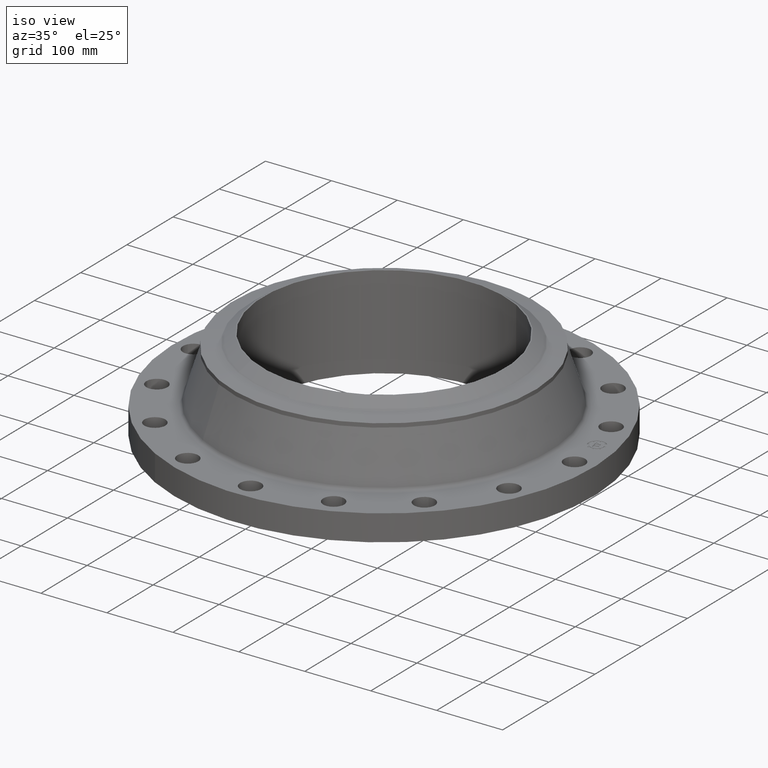
[diagram: clean part render]
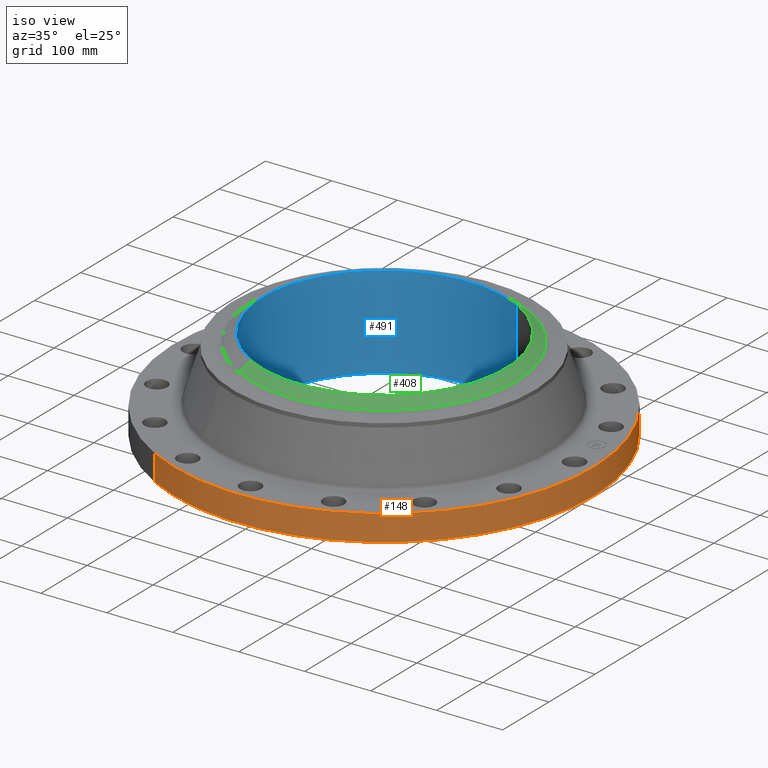
[diagram: same view with three faces highlighted in distinct colors, each labeled with its STEP entity id]
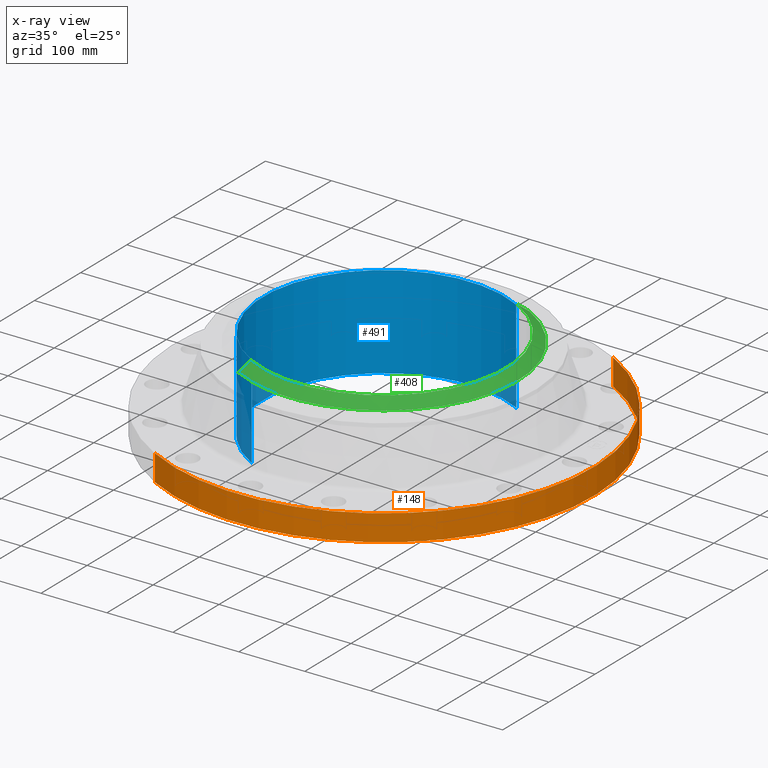
[diagram: x-ray of the same camera — body ghosted, the three highlighted faces saturated]
A machine part, iso view with three faces highlighted in distinct colors.
The next image is the same camera in x-ray (body ghosted, the three faces saturated) — at least one of them is partly hidden behind the body in this view.
Their STEP definitions:

[orange] entity #148 — the highlighted cylindrical surface (partial cylindrical patch) has radius 317.5 mm, axis along (0, 0, -1).
#95=AXIS2_PLACEMENT_3D('Cylinder Axis2P3D',#92,#93,#94) ;
#134=AXIS2_PLACEMENT_3D('Circle Axis2P3D',#132,#133,$) ;
#139=AXIS2_PLACEMENT_3D('Circle Axis2P3D',#137,#138,$) ;
#92=CARTESIAN_POINT('Axis2P3D Location',(0.,0.,2.76850000001)) ;
#101=CARTESIAN_POINT('Vertex',(-5.99281923258,-10.9697820237,1.1189649382E-015)) ;
#103=CARTESIAN_POINT('Vertex',(5.99281923258,10.9697820237,1.1189649382E-015)) ;
#106=CARTESIAN_POINT('Line Origine',(-5.99281923258,-10.9697820237,0.780000000003)) ;
#110=CARTESIAN_POINT('Vertex',(-5.99281923258,-10.9697820237,1.56000000001)) ;
#117=CARTESIAN_POINT('Vertex',(5.99281923258,10.9697820237,1.56000000001)) ;
#120=CARTESIAN_POINT('Line Origine',(5.99281923258,10.9697820237,0.780000000003)) ;
#132=CARTESIAN_POINT('Axis2P3D Location',(0.,0.,1.1189649382E-015)) ;
#137=CARTESIAN_POINT('Axis2P3D Location',(0.,0.,1.56000000001)) ;
#93=DIRECTION('Axis2P3D Direction',(0.,0.,-0.0393700787402)) ;
#94=DIRECTION('Axis2P3D XDirection',(0.0188750212049,0.0345504945626,0.)) ;
#107=DIRECTION('Vector Direction',(0.,0.,-0.0393700787402)) ;
#121=DIRECTION('Vector Direction',(0.,0.,-0.0393700787402)) ;
#133=DIRECTION('Axis2P3D Direction',(0.,0.,-0.0393700787402)) ;
#138=DIRECTION('Axis2P3D Direction',(0.,0.,-0.0393700787402)) ;
#108=VECTOR('Line Direction',#107,0.0393700787402) ;
#122=VECTOR('Line Direction',#121,0.0393700787402) ;
#143=ORIENTED_EDGE('',*,*,#136,.F.) ;
#144=ORIENTED_EDGE('',*,*,#124,.T.) ;
#145=ORIENTED_EDGE('',*,*,#141,.T.) ;
#146=ORIENTED_EDGE('',*,*,#112,.F.) ;
#148=ADVANCED_FACE('PartBody',(#147),#96,.T.) ;
#135=CIRCLE('generated circle',#134,12.5000000001) ;
#140=CIRCLE('generated circle',#139,12.5000000001) ;
#96=CYLINDRICAL_SURFACE('generated cylinder',#95,12.5000000001) ;
#112=EDGE_CURVE('',#102,#111,#109,.F.) ;
#124=EDGE_CURVE('',#104,#118,#123,.F.) ;
#136=EDGE_CURVE('',#104,#102,#135,.T.) ;
#141=EDGE_CURVE('',#118,#111,#140,.T.) ;
#142=EDGE_LOOP('',(#143,#144,#145,#146)) ;
#147=FACE_OUTER_BOUND('',#142,.T.) ;
#109=LINE('Line',#106,#108) ;
#123=LINE('Line',#120,#122) ;
#102=VERTEX_POINT('',#101) ;
#104=VERTEX_POINT('',#103) ;
#111=VERTEX_POINT('',#110) ;
#118=VERTEX_POINT('',#117) ;

[blue] entity #491 — the highlighted cylindrical surface (partial cylindrical patch) has radius 183.363 mm, axis along (0, 0, -1).
#432=AXIS2_PLACEMENT_3D('Circle Axis2P3D',#430,#431,$) ;
#452=AXIS2_PLACEMENT_3D('Cylinder Axis2P3D',#449,#450,#451) ;
#482=AXIS2_PLACEMENT_3D('Circle Axis2P3D',#480,#481,$) ;
#430=CARTESIAN_POINT('Axis2P3D Location',(5.59482469102E-016,-2.79741234551E-016,5.50000000002)) ;
#434=CARTESIAN_POINT('Vertex',(-3.4609729632,-6.33526851431,5.50000000002)) ;
#436=CARTESIAN_POINT('Vertex',(3.4609729632,6.33526851431,5.50000000002)) ;
#449=CARTESIAN_POINT('Axis2P3D Location',(0.,0.,2.76850000001)) ;
#454=CARTESIAN_POINT('Line Origine',(3.4609729632,6.33526851431,2.71850000001)) ;
#458=CARTESIAN_POINT('Vertex',(3.4609729632,6.33526851431,-0.0630000000003)) ;
#465=CARTESIAN_POINT('Vertex',(-3.4609729632,-6.33526851431,-0.0630000000003)) ;
#468=CARTESIAN_POINT('Line Origine',(-3.4609729632,-6.33526851431,2.71850000001)) ;
#480=CARTESIAN_POINT('Axis2P3D Location',(0.,0.,-0.0630000000003)) ;
#431=DIRECTION('Axis2P3D Direction',(0.,-0.,-0.0393700787402)) ;
#450=DIRECTION('Axis2P3D Direction',(0.,0.,-0.0393700787402)) ;
#451=DIRECTION('Axis2P3D XDirection',(-0.0188750212049,-0.0345504945626,0.)) ;
#455=DIRECTION('Vector Direction',(0.,0.,-0.0393700787402)) ;
#469=DIRECTION('Vector Direction',(0.,0.,-0.0393700787402)) ;
#481=DIRECTION('Axis2P3D Direction',(0.,0.,-0.0393700787402)) ;
#456=VECTOR('Line Direction',#455,0.0393700787402) ;
#470=VECTOR('Line Direction',#469,0.0393700787402) ;
#486=ORIENTED_EDGE('',*,*,#472,.T.) ;
#487=ORIENTED_EDGE('',*,*,#484,.T.) ;
#488=ORIENTED_EDGE('',*,*,#460,.F.) ;
#489=ORIENTED_EDGE('',*,*,#438,.F.) ;
#491=ADVANCED_FACE('PartBody',(#490),#453,.F.) ;
#433=CIRCLE('generated circle',#432,7.21900000003) ;
#483=CIRCLE('generated circle',#482,7.21900000003) ;
#453=CYLINDRICAL_SURFACE('generated cylinder',#452,7.21900000003) ;
#438=EDGE_CURVE('',#435,#437,#433,.T.) ;
#460=EDGE_CURVE('',#437,#459,#457,.T.) ;
#472=EDGE_CURVE('',#435,#466,#471,.T.) ;
#484=EDGE_CURVE('',#466,#459,#483,.T.) ;
#485=EDGE_LOOP('',(#486,#487,#488,#489)) ;
#490=FACE_OUTER_BOUND('',#485,.T.) ;
#457=LINE('Line',#454,#456) ;
#471=LINE('Line',#468,#470) ;
#435=VERTEX_POINT('',#434) ;
#437=VERTEX_POINT('',#436) ;
#459=VERTEX_POINT('',#458) ;
#466=VERTEX_POINT('',#465) ;

[green] entity #408 — the highlighted conical surface has half-angle 52.5 deg.
#356=AXIS2_PLACEMENT_3D('Circle Axis2P3D',#354,#355,$) ;
#381=AXIS2_PLACEMENT_3D('Cone Axis2P3D',#378,#379,#380) ;
#399=AXIS2_PLACEMENT_3D('Circle Axis2P3D',#397,#398,$) ;
#344=CARTESIAN_POINT('Vertex',(-3.80890811771,-6.97215954259,4.99108306753)) ;
#351=CARTESIAN_POINT('Vertex',(3.80890811771,6.97215954259,4.99108306753)) ;
#354=CARTESIAN_POINT('Axis2P3D Location',(0.,0.,4.99108306753)) ;
#378=CARTESIAN_POINT('Axis2P3D Location',(0.,0.,5.50000000002)) ;
#383=CARTESIAN_POINT('Line Origine',(-3.64992258853,-6.68113848351,5.24554153378)) ;
#387=CARTESIAN_POINT('Vertex',(-3.49093705936,-6.39011742443,5.50000000002)) ;
#390=CARTESIAN_POINT('Line Origine',(3.64992258853,6.68113848351,5.24554153378)) ;
#394=CARTESIAN_POINT('Vertex',(3.49093705936,6.39011742443,5.50000000002)) ;
#397=CARTESIAN_POINT('Axis2P3D Location',(0.,0.,5.50000000002)) ;
#355=DIRECTION('Axis2P3D Direction',(0.,-0.,-0.0393700787402)) ;
#379=DIRECTION('Axis2P3D Direction',(-0.,-0.,-0.0393700787402)) ;
#380=DIRECTION('Axis2P3D XDirection',(-0.0188750212049,-0.0345504945626,0.)) ;
#384=DIRECTION('Vector Direction',(-0.014974561121,-0.02741075027,-0.023966985394)) ;
#391=DIRECTION('Vector Direction',(0.014974561121,0.02741075027,-0.023966985394)) ;
#398=DIRECTION('Axis2P3D Direction',(0.,-0.,-0.0393700787402)) ;
#385=VECTOR('Line Direction',#384,0.0393700787402) ;
#392=VECTOR('Line Direction',#391,0.0393700787402) ;
#403=ORIENTED_EDGE('',*,*,#389,.T.) ;
#404=ORIENTED_EDGE('',*,*,#358,.F.) ;
#405=ORIENTED_EDGE('',*,*,#396,.F.) ;
#406=ORIENTED_EDGE('',*,*,#401,.T.) ;
#408=ADVANCED_FACE('PartBody',(#407),#382,.T.) ;
#357=CIRCLE('generated circle',#356,7.94473345912) ;
#400=CIRCLE('generated circle',#399,7.28150000003) ;
#382=CONICAL_SURFACE('Cone',#381,7.28150000003,0.916297857297) ;
#358=EDGE_CURVE('',#352,#345,#357,.T.) ;
#389=EDGE_CURVE('',#388,#345,#386,.T.) ;
#396=EDGE_CURVE('',#395,#352,#393,.T.) ;
#401=EDGE_CURVE('',#395,#388,#400,.T.) ;
#402=EDGE_LOOP('',(#403,#404,#405,#406)) ;
#407=FACE_OUTER_BOUND('',#402,.T.) ;
#386=LINE('Line',#383,#385) ;
#393=LINE('Line',#390,#392) ;
#345=VERTEX_POINT('',#344) ;
#352=VERTEX_POINT('',#351) ;
#388=VERTEX_POINT('',#387) ;
#395=VERTEX_POINT('',#394) ;